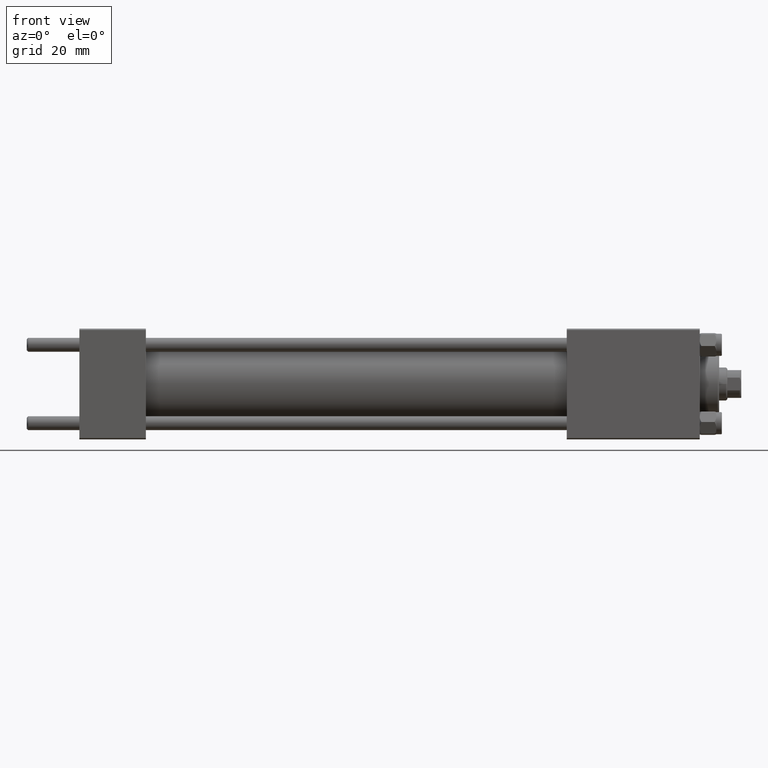
[diagram: clean part render]
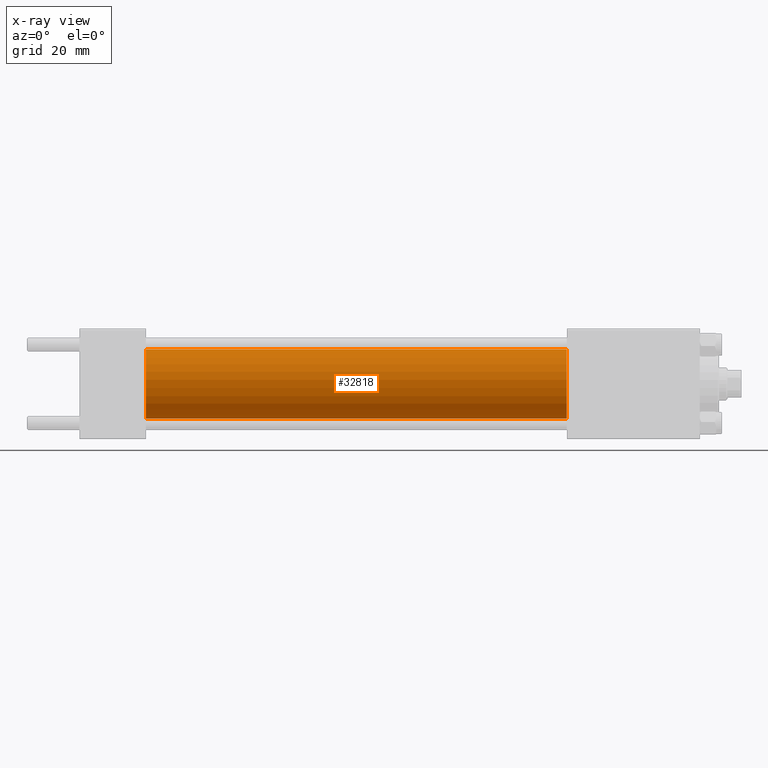
[diagram: x-ray — body ghosted, one internal face saturated and labeled with its STEP entity id]
A machine part, front view, then the same camera in x-ray: the body is ghosted and one INTERNAL B-rep face — a face not visible from any outside direction — is saturated and labeled: STEP entity #32818.
In plain terms, the highlighted cylindrical surface (edge-blend (fillet) strip) has radius 12.5 mm, axis along (-1, -0, -0).
Its self-contained STEP definition (entity closure, byte-faithful):
#677 = VERTEX_POINT ( 'NONE', #46541 ) ;
#1312 = CARTESIAN_POINT ( 'NONE',  ( 24.00000000000000000, 0.000000000000000000, 12.49999999999999645 ) ) ;
#4608 = CYLINDRICAL_SURFACE ( 'NONE', #43858, 12.49999999999999645 ) ;
#5062 = CARTESIAN_POINT ( 'NONE',  ( 176.0000000000000000, 0.000000000000000000, 0.000000000000000000 ) ) ;
#6147 = EDGE_LOOP ( 'NONE', ( #44177, #49728, #16773, #11903 ) ) ;
#6377 = DIRECTION ( 'NONE',  ( 1.000000000000000000, 0.000000000000000000, 0.000000000000000000 ) ) ;
#7482 = CIRCLE ( 'NONE', #38086, 12.49999999999999645 ) ;
#8063 = DIRECTION ( 'NONE',  ( -1.000000000000000000, -0.000000000000000000, -0.000000000000000000 ) ) ;
#9385 = DIRECTION ( 'NONE',  ( -1.000000000000000000, -0.000000000000000000, -0.000000000000000000 ) ) ;
#9921 = DIRECTION ( 'NONE',  ( 0.000000000000000000, 0.000000000000000000, -1.000000000000000000 ) ) ;
#11903 = ORIENTED_EDGE ( 'NONE', *, *, #30112, .F. ) ;
#12394 = CIRCLE ( 'NONE', #40574, 12.49999999999999645 ) ;
#14904 = CARTESIAN_POINT ( 'NONE',  ( 176.0000000000000000, 0.000000000000000000, 12.49999999999999645 ) ) ;
#16221 = DIRECTION ( 'NONE',  ( 0.000000000000000000, 0.000000000000000000, 1.000000000000000000 ) ) ;
#16717 = VERTEX_POINT ( 'NONE', #48686 ) ;
#16773 = ORIENTED_EDGE ( 'NONE', *, *, #29501, .F. ) ;
#17346 = LINE ( 'NONE', #36010, #42696 ) ;
#18034 = EDGE_CURVE ( 'NONE', #16717, #47080, #17346, .T. ) ;
#20466 = DIRECTION ( 'NONE',  ( 1.000000000000000000, 0.000000000000000000, 0.000000000000000000 ) ) ;
#22957 = LINE ( 'NONE', #14904, #26824 ) ;
#24673 = DIRECTION ( 'NONE',  ( -1.000000000000000000, -0.000000000000000000, -0.000000000000000000 ) ) ;
#26824 = VECTOR ( 'NONE', #8063, 1000.000000000000000 ) ;
#29501 = EDGE_CURVE ( 'NONE', #32782, #47080, #7482, .T. ) ;
#30112 = EDGE_CURVE ( 'NONE', #677, #32782, #22957, .T. ) ;
#32782 = VERTEX_POINT ( 'NONE', #1312 ) ;
#32818 = ADVANCED_FACE ( 'NONE', ( #43971 ), #4608, .F. ) ;
#35832 = DIRECTION ( 'NONE',  ( 0.000000000000000000, 0.000000000000000000, -1.000000000000000000 ) ) ;
#36010 = CARTESIAN_POINT ( 'NONE',  ( 176.0000000000000000, 1.530808498934191127E-15, -12.49999999999999645 ) ) ;
#36650 = CARTESIAN_POINT ( 'NONE',  ( 24.00000000000000000, 0.000000000000000000, 0.000000000000000000 ) ) ;
#38086 = AXIS2_PLACEMENT_3D ( 'NONE', #36650, #6377, #9921 ) ;
#39922 = CARTESIAN_POINT ( 'NONE',  ( 176.0000000000000000, 0.000000000000000000, 0.000000000000000000 ) ) ;
#40574 = AXIS2_PLACEMENT_3D ( 'NONE', #5062, #20466, #35832 ) ;
#40988 = CARTESIAN_POINT ( 'NONE',  ( 24.00000000000000000, 1.530808498934191127E-15, -12.49999999999999645 ) ) ;
#42696 = VECTOR ( 'NONE', #24673, 1000.000000000000000 ) ;
#43858 = AXIS2_PLACEMENT_3D ( 'NONE', #39922, #9385, #16221 ) ;
#43971 = FACE_OUTER_BOUND ( 'NONE', #6147, .T. ) ;
#44177 = ORIENTED_EDGE ( 'NONE', *, *, #47684, .T. ) ;
#46541 = CARTESIAN_POINT ( 'NONE',  ( 176.0000000000000000, 0.000000000000000000, 12.49999999999999645 ) ) ;
#47080 = VERTEX_POINT ( 'NONE', #40988 ) ;
#47684 = EDGE_CURVE ( 'NONE', #677, #16717, #12394, .T. ) ;
#48686 = CARTESIAN_POINT ( 'NONE',  ( 176.0000000000000000, 1.530808498934191127E-15, -12.49999999999999645 ) ) ;
#49728 = ORIENTED_EDGE ( 'NONE', *, *, #18034, .T. ) ;